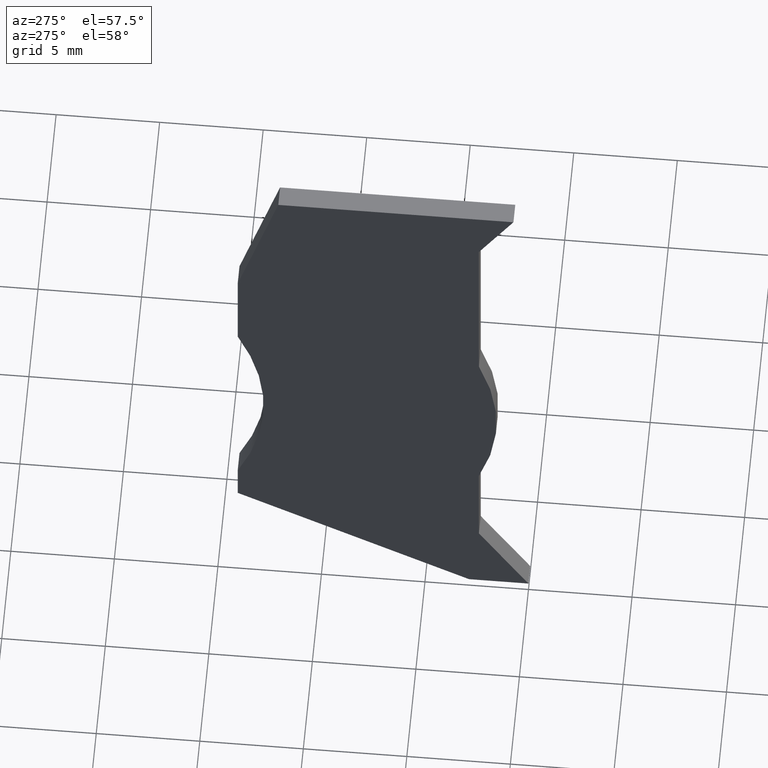
[diagram: clean part render]
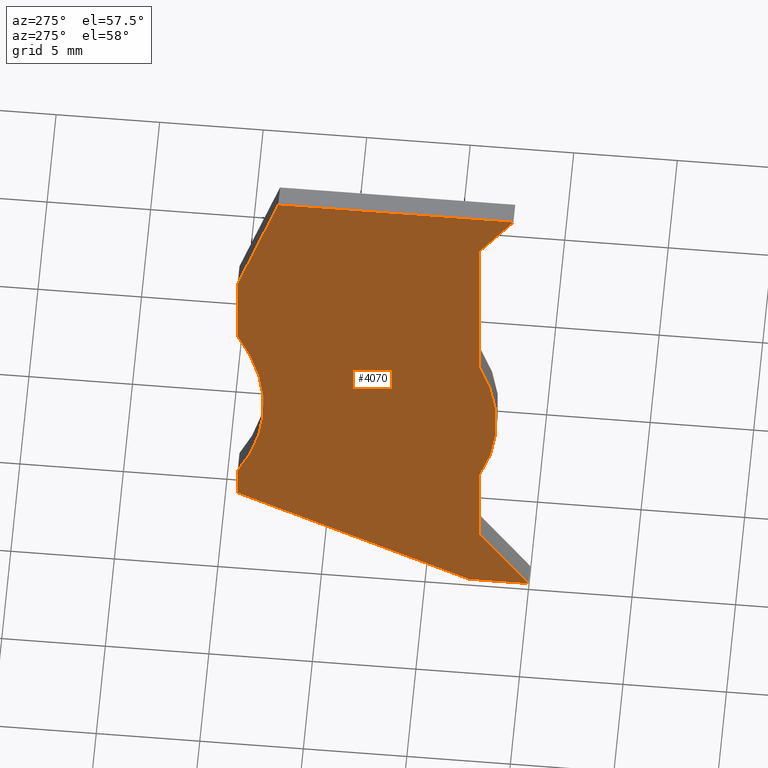
[diagram: same view with one face highlighted and labeled with its STEP entity id]
A machine part, auxiliary view. The second image highlights one B-rep face of the part: STEP entity #4070.
In plain terms, the highlighted planar face has unit normal (-1, -0, 0).
Its self-contained STEP definition (entity closure, byte-faithful):
#210=CARTESIAN_POINT('',(26.3821672216756,-32.0892042425621,53.17));
#220=VERTEX_POINT('',#210);
#250=CARTESIAN_POINT('',(39.9798943065431,-27.2000000000027,53.17));
#260=DIRECTION('',(0.,0.,1.));
#270=DIRECTION('',(1.,0.,0.));
#280=AXIS2_PLACEMENT_3D('',#250,#260,#270);
#290=CIRCLE('',#280,14.45);
#300=CARTESIAN_POINT('',(26.3821672216756,-22.3107957574434,53.17));
#310=VERTEX_POINT('',#300);
#320=EDGE_CURVE('',#310,#220,#290,.T.);
#590=CARTESIAN_POINT('',(26.3821672216756,-12.0389416166838,53.17));
#600=VERTEX_POINT('',#590);
#720=CARTESIAN_POINT('',(26.3821672216756,-12.1300507694265,53.17));
#730=DIRECTION('',(0.,1.,0.));
#740=VECTOR('',#730,1.);
#750=LINE('',#720,#740);
#760=EDGE_CURVE('',#310,#600,#750,.T.);
#930=CARTESIAN_POINT('',(11.4461541156283,-41.4000000000014,53.17));
#940=DIRECTION('',(1.,0.,0.));
#950=VECTOR('',#940,1.);
#960=LINE('',#930,#950);
#970=CARTESIAN_POINT('',(23.9882355597288,-41.4000000000014,53.17));
#980=VERTEX_POINT('',#970);
#990=CARTESIAN_POINT('',(26.8570992376999,-41.4000000000014,53.17));
#1000=VERTEX_POINT('',#990);
#1010=EDGE_CURVE('',#980,#1000,#960,.T.);
#2310=CARTESIAN_POINT('',(36.0719729923296,-9.15000000000323,53.17));
#2320=VERTEX_POINT('',#2310);
#2400=CARTESIAN_POINT('',(24.7142360016119,-9.15000000000323,53.17));
#2410=VERTEX_POINT('',#2400);
#2440=CARTESIAN_POINT('',(11.4461541156283,-9.15000000000323,53.17));
#2450=DIRECTION('',(1.,0.,0.));
#2460=VECTOR('',#2450,1.);
#2470=LINE('',#2440,#2460);
#2480=EDGE_CURVE('',#2410,#2320,#2470,.T.);
#2650=CARTESIAN_POINT('',(38.0321672216756,-12.1300507694265,53.17));
#2660=DIRECTION('',(0.,-1.,0.));
#2670=VECTOR('',#2660,1.);
#2680=LINE('',#2650,#2670);
#2690=CARTESIAN_POINT('',(38.0321672216756,-33.2000000000027,53.17));
#2700=VERTEX_POINT('',#2690);
#2710=CARTESIAN_POINT('',(38.0321672216756,-35.2,53.17));
#2720=VERTEX_POINT('',#2710);
#2730=EDGE_CURVE('',#2700,#2720,#2680,.T.);
#3030=CARTESIAN_POINT('',(38.0321672216756,-12.1300507694265,53.17));
#3040=DIRECTION('',(0.,-1.,0.));
#3050=VECTOR('',#3040,1.);
#3060=LINE('',#3030,#3050);
#3070=CARTESIAN_POINT('',(38.0321672216756,-16.4655444566078,53.17));
#3080=VERTEX_POINT('',#3070);
#3090=CARTESIAN_POINT('',(38.0321672216756,-21.2000000000027,53.17));
#3100=VERTEX_POINT('',#3090);
#3110=EDGE_CURVE('',#3080,#3100,#3060,.T.);
#3430=CARTESIAN_POINT('',(11.4461541156283,-49.9500920346875,53.17));
#3440=DIRECTION('',(-0.874435210897321,-0.485142311021167,0.));
#3450=VECTOR('',#3440,1.);
#3460=LINE('',#3430,#3450);
#3470=EDGE_CURVE('',#2720,#1000,#3460,.T.);
#3600=CARTESIAN_POINT('',(-9.33507517498072,-22.9764073331224,53.17));
#3610=DIRECTION('',(0.,0.,-1.));
#3620=DIRECTION('',(-1.,0.,0.));
#3630=AXIS2_PLACEMENT_3D('',#3600,#3610,#3620);
#3640=PLANE('',#3630);
#3650=ORIENTED_EDGE('',*,*,#320,.F.);
#3660=CARTESIAN_POINT('',(26.3821672216756,-12.1300507694265,53.17));
#3670=DIRECTION('',(0.,-1.,0.));
#3680=VECTOR('',#3670,1.);
#3690=LINE('',#3660,#3680);
#3700=CARTESIAN_POINT('',(26.3821672216756,-37.2400792696525,53.17));
#3710=VERTEX_POINT('',#3700);
#3720=EDGE_CURVE('',#220,#3710,#3690,.T.);
#3730=ORIENTED_EDGE('',*,*,#3720,.F.);
#3740=CARTESIAN_POINT('',(40.8323685970354,-12.1300507694265,53.17));
#3750=DIRECTION('',(0.498780693240353,0.86672822733004,0.));
#3760=VECTOR('',#3750,1.);
#3770=LINE('',#3740,#3760);
#3780=EDGE_CURVE('',#980,#3710,#3770,.T.);
#3790=ORIENTED_EDGE('',*,*,#3780,.T.);
#3800=ORIENTED_EDGE('',*,*,#1010,.F.);
#3810=ORIENTED_EDGE('',*,*,#3470,.T.);
#3820=ORIENTED_EDGE('',*,*,#2730,.T.);
#3830=CARTESIAN_POINT('',(51.7798943065431,-27.2000000000027,53.17));
#3840=DIRECTION('',(0.,0.,1.));
#3850=DIRECTION('',(1.,0.,0.));
#3860=AXIS2_PLACEMENT_3D('',#3830,#3840,#3850);
#3870=CIRCLE('',#3860,15.);
#3880=EDGE_CURVE('',#3100,#2700,#3870,.T.);
#3890=ORIENTED_EDGE('',*,*,#3880,.T.);
#3900=ORIENTED_EDGE('',*,*,#3110,.T.);
#3910=CARTESIAN_POINT('',(36.8704751894023,-12.1300507694265,53.17));
#3920=DIRECTION('',(0.258819045103111,-0.96592582628891,0.));
#3930=VECTOR('',#3920,1.);
#3940=LINE('',#3910,#3930);
#3950=EDGE_CURVE('',#2320,#3080,#3940,.T.);
#3960=ORIENTED_EDGE('',*,*,#3950,.T.);
#3970=ORIENTED_EDGE('',*,*,#2480,.T.);
#3980=CARTESIAN_POINT('',(26.4347691155372,-12.1300507694265,53.17));
#3990=DIRECTION('',(-0.499999999999997,0.86602540378444,0.));
#4000=VECTOR('',#3990,1.);
#4010=LINE('',#3980,#4000);
#4020=EDGE_CURVE('',#600,#2410,#4010,.T.);
#4030=ORIENTED_EDGE('',*,*,#4020,.T.);
#4040=ORIENTED_EDGE('',*,*,#760,.T.);
#4050=EDGE_LOOP('',(#4040,#4030,#3970,#3960,#3900,#3890,#3820,#3810,
#3800,#3790,#3730,#3650));
#4060=FACE_OUTER_BOUND('',#4050,.T.);
#4070=ADVANCED_FACE('',(#4060),#3640,.T.);